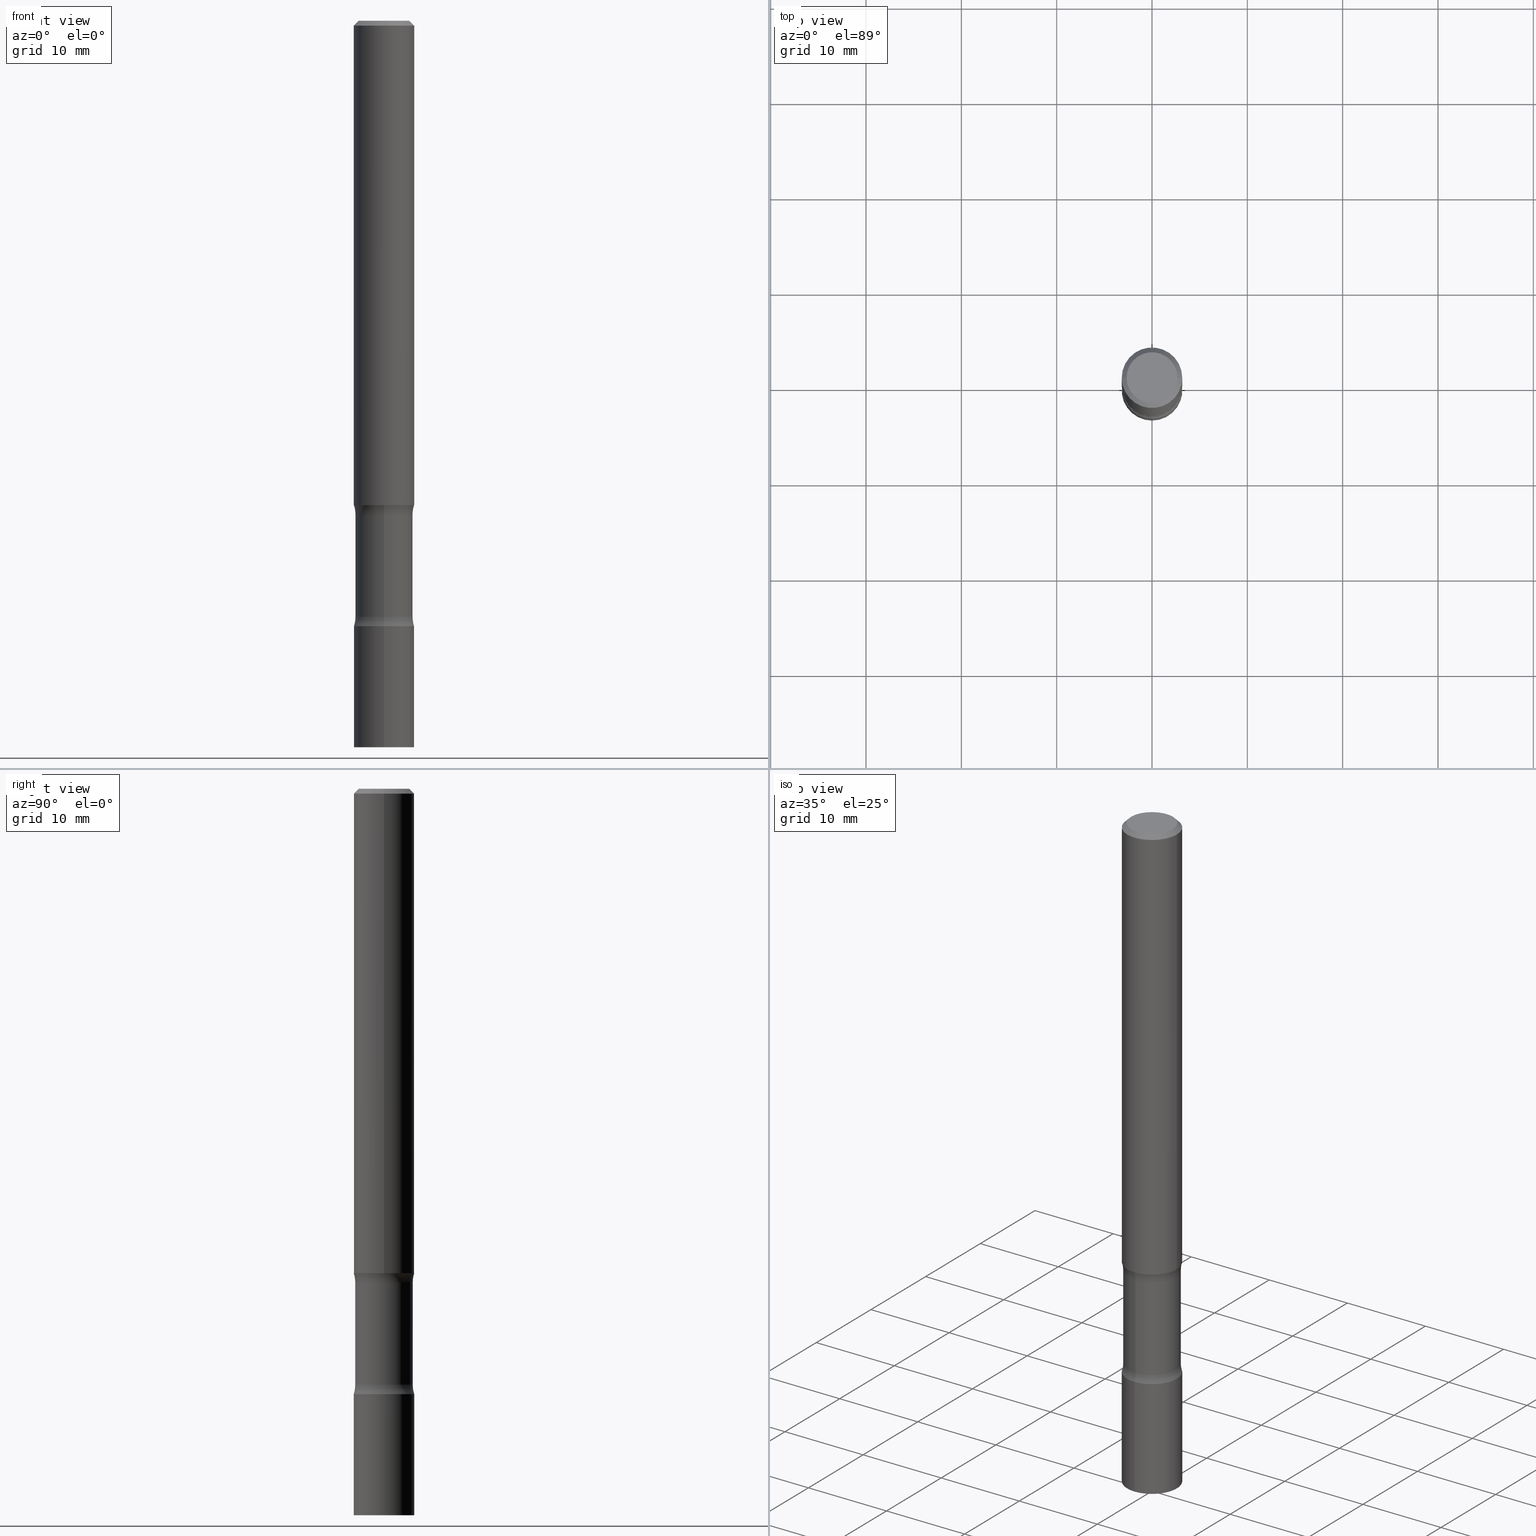
[diagram: canonical four-view strip — front | top / right | iso, engineering-drawing reading convention]
A machine part, canonical four-view strip (front | top / right | iso — engineering-drawing reading convention). The complete STEP part file that produces these views, byte-faithful:
ISO-10303-21;
HEADER;
FILE_DESCRIPTION (( 'STEP AP203' ),
    '1' );
FILE_NAME ('37783.STEP',
    '2024-03-11T13:24:57',
    ( '' ),
    ( '' ),
    'SwSTEP 2.0',
    'SolidWorks 2023',
    '' );
FILE_SCHEMA (( 'CONFIG_CONTROL_DESIGN' ));
ENDSEC;

DATA;
#1 = ORIENTED_EDGE ( 'NONE', *, *, #290, .F. ) ;
#2 = PLANE ( 'NONE',  #314 ) ;
#3 = CARTESIAN_POINT ( 'NONE',  ( 4.944889637458821058E-29, -7.178666509795189020E-15, -2.039031237489990378 ) ) ;
#4 = ORIENTED_EDGE ( 'NONE', *, *, #106, .F. ) ;
#5 = DIRECTION ( 'NONE',  ( 1.000000000000000000, -6.982962677686265922E-15, 4.876176775795935793E-29 ) ) ;
#6 = ADVANCED_FACE ( 'NONE', ( #173 ), #104, .F. ) ;
#7 = VERTEX_POINT ( 'NONE', #336 ) ;
#8 = DIRECTION ( 'NONE',  ( 6.982962677686265922E-15, 1.000000000000000000, -3.490931898794811995E-15 ) ) ;
#9 = ORIENTED_EDGE ( 'NONE', *, *, #14, .F. ) ;
#10 = DIRECTION ( 'NONE',  ( -1.000000000000000000, 6.982962677686265922E-15, -4.883557194083112340E-29 ) ) ;
#11 = DIRECTION ( 'NONE',  ( 2.537572289003869252E-29, -3.359583909242031420E-15, -1.000000000000000000 ) ) ;
#12 = AXIS2_PLACEMENT_3D ( 'NONE', #259, #145, #461 ) ;
#13 = VECTOR ( 'NONE', #175, 39.37007874015748143 ) ;
#14 = EDGE_CURVE ( 'NONE', #36, #79, #452, .T. ) ;
#15 = CARTESIAN_POINT ( 'NONE',  ( 1.702097152686087859E-15, 0.2437499999999914180, -2.460968762510010510 ) ) ;
#16 = ORIENTED_EDGE ( 'NONE', *, *, #353, .T. ) ;
#17 = EDGE_LOOP ( 'NONE', ( #292, #365, #81, #34 ) ) ;
#18 = DIRECTION ( 'NONE',  ( 6.982962677686266711E-15, 1.000000000000000000, -3.359583909242031026E-15 ) ) ;
#19 = VECTOR ( 'NONE', #399, 39.37007874015748143 ) ;
#20 = APPROVAL_PERSON_ORGANIZATION ( #349, #302, #183 ) ;
#21 = CARTESIAN_POINT ( 'NONE',  ( -1.672246386956761357E-15, -0.2437500000000072109, -2.039031237489989934 ) ) ;
#22 = APPROVAL_DATE_TIME ( #379, #302 ) ;
#23 = DIRECTION ( 'NONE',  ( -6.982962677686265922E-15, -1.000000000000000000, 4.370956789862822727E-15 ) ) ;
#24 = EDGE_CURVE ( 'NONE', #7, #202, #338, .T. ) ;
#25 = CALENDAR_DATE ( 2024, 11, 3 ) ;
#26 = DIRECTION ( 'NONE',  ( 2.537572289003869812E-29, -3.359583909242031026E-15, -1.000000000000000000 ) ) ;
#27 = CC_DESIGN_PERSON_AND_ORGANIZATION_ASSIGNMENT ( #424, #102, ( #469 ) ) ;
#28 = VECTOR ( 'NONE', #337, 39.37007874015748143 ) ;
#29 = CARTESIAN_POINT ( 'NONE',  ( 6.114631195300628231E-29, -8.727329746987029987E-15, -2.500000000000000000 ) ) ;
#30 = DATE_AND_TIME ( #25, #113 ) ;
#31 = COORDINATED_UNIVERSAL_TIME_OFFSET ( 5, 0, .BEHIND. ) ;
#32 = VERTEX_POINT ( 'NONE', #378 ) ;
#33 = CIRCLE ( 'NONE', #468, 0.1250000000000000000 ) ;
#34 = ORIENTED_EDGE ( 'NONE', *, *, #456, .F. ) ;
#35 = CARTESIAN_POINT ( 'NONE',  ( 7.332110811570563480E-16, 0.1049999999999997741, -3.666055405785295052E-16 ) ) ;
#36 = VERTEX_POINT ( 'NONE', #181 ) ;
#37 = PLANE ( 'NONE',  #297 ) ;
#38 = FACE_OUTER_BOUND ( 'NONE', #318, .T. ) ;
#39 = AXIS2_PLACEMENT_3D ( 'NONE', #287, #207, #279 ) ;
#40 = CIRCLE ( 'NONE', #315, 0.1187499999999999944 ) ;
#41 = EDGE_LOOP ( 'NONE', ( #482, #431, #72, #479 ) ) ;
#42 = CARTESIAN_POINT ( 'NONE',  ( -1.820262020262032864E-29, -2.358731438611790769E-14, -2.999999999999999556 ) ) ;
#43 = ORIENTED_EDGE ( 'NONE', *, *, #319, .F. ) ;
#44 = DIRECTION ( 'NONE',  ( -6.982962677686265922E-15, -1.000000000000000000, 4.370956789862822727E-15 ) ) ;
#45 = ORIENTED_EDGE ( 'NONE', *, *, #507, .T. ) ;
#46 = APPLICATION_CONTEXT ( 'configuration controlled 3d designs of mechanical parts and assemblies' ) ;
#47 = DIRECTION ( 'NONE',  ( -6.982962677686265922E-15, -1.000000000000000000, 3.490931898794811600E-15 ) ) ;
#48 = LINE ( 'NONE', #398, #19 ) ;
#49 = CIRCLE ( 'NONE', #199, 0.1250000000000000278 ) ;
#50 = ORIENTED_EDGE ( 'NONE', *, *, #392, .T. ) ;
#51 = APPROVAL_PERSON_ORGANIZATION ( #459, #78, #310 ) ;
#52 = CARTESIAN_POINT ( 'NONE',  ( -1.672246386956750707E-15, -0.2437500000000086264, -2.460968762510009622 ) ) ;
#53 = EDGE_LOOP ( 'NONE', ( #288, #355, #321, #76 ) ) ;
#54 = ADVANCED_FACE ( 'NONE', ( #342 ), #304, .T. ) ;
#55 = CYLINDRICAL_SURFACE ( 'NONE', #95, 0.1249999999999999584 ) ;
#56 = CARTESIAN_POINT ( 'NONE',  ( 6.018222341714267541E-29, -8.592426509779609334E-15, -2.460968762510010066 ) ) ;
#57 = DIRECTION ( 'NONE',  ( 6.860497997771530774E-15, 1.000000000000000000, 0.000000000000000000 ) ) ;
#58 = CIRCLE ( 'NONE', #481, 0.1249999999999999584 ) ;
#59 = LOCAL_TIME ( 9, 24, 57.00000000000000000, #228 ) ;
#60 = CALENDAR_DATE ( 2024, 11, 3 ) ;
#61 = CARTESIAN_POINT ( 'NONE',  ( 8.292268179753181276E-16, 0.1187499999999896139, -3.000000000000000444 ) ) ;
#62 = DIRECTION ( 'NONE',  ( 6.982962677686265922E-15, 1.000000000000000000, -4.370956789862822727E-15 ) ) ;
#63 = PERSON_AND_ORGANIZATION_ROLE ( 'classification_officer' ) ;
#64 = DIRECTION ( 'NONE',  ( 2.537572289003869812E-29, -3.359583909242031026E-15, -1.000000000000000000 ) ) ;
#65 = DIRECTION ( 'NONE',  ( 2.445468806185136597E-29, -3.491481338843145583E-15, -1.000000000000000000 ) ) ;
#66 = DIRECTION ( 'NONE',  ( 1.000000000000000000, 0.000000000000000000, 0.000000000000000000 ) ) ;
#67 = CARTESIAN_POINT ( 'NONE',  ( 7.337557434360752308E-29, -1.047279569638443441E-14, -3.000000000000000444 ) ) ;
#68 = COORDINATED_UNIVERSAL_TIME_OFFSET ( 5, 0, .BEHIND. ) ;
#69 = PERSON ( 'UNSPECIFIED', 'UNSPECIFIED', 'UNSPECIFIED', ('UNSPECIFIED'), ('UNSPECIFIED'), ('UNSPECIFIED') ) ;
#70 = CARTESIAN_POINT ( 'NONE',  ( 0.1249999999999997641, -9.273918764983027713E-16, -0.02000000000000000042 ) ) ;
#71 = ADVANCED_FACE ( 'NONE', ( #223 ), #426, .F. ) ;
#72 = ORIENTED_EDGE ( 'NONE', *, *, #381, .T. ) ;
#73 = ORIENTED_EDGE ( 'NONE', *, *, #325, .T. ) ;
#74 = PRODUCT_DEFINITION_SHAPE ( 'NONE', 'NONE',  #121 ) ;
#75 = CIRCLE ( 'NONE', #192, 0.1187499999999999944 ) ;
#76 = ORIENTED_EDGE ( 'NONE', *, *, #261, .F. ) ;
#77 = DIRECTION ( 'NONE',  ( -6.982962677686265922E-15, -1.000000000000000000, 0.000000000000000000 ) ) ;
#78 = APPROVAL ( #149, 'UNSPECIFIED' ) ;
#79 = VERTEX_POINT ( 'NONE', #309 ) ;
#80 = FACE_OUTER_BOUND ( 'NONE', #396, .T. ) ;
#81 = ORIENTED_EDGE ( 'NONE', *, *, #364, .T. ) ;
#82 = CARTESIAN_POINT ( 'NONE',  ( 1.702097152686077012E-15, 0.2437499999999928613, -2.039031237489991266 ) ) ;
#83 = CIRCLE ( 'NONE', #376, 0.1249999999999997641 ) ;
#84 = LOCAL_TIME ( 9, 24, 57.00000000000000000, #266 ) ;
#85 = ORIENTED_EDGE ( 'NONE', *, *, #430, .F. ) ;
#86 = ADVANCED_FACE ( 'NONE', ( #503 ), #354, .T. ) ;
#87 = CARTESIAN_POINT ( 'NONE',  ( 0.000000000000000000, 0.000000000000000000, 0.000000000000000000 ) ) ;
#88 = CARTESIAN_POINT ( 'NONE',  ( 4.890937612370273159E-31, -6.982962677686291609E-17, -0.02000000000000000042 ) ) ;
#89 = CYLINDRICAL_SURFACE ( 'NONE', #264, 0.1187500000000000361 ) ;
#90 = ORIENTED_EDGE ( 'NONE', *, *, #133, .T. ) ;
#91 = DIRECTION ( 'NONE',  ( 1.000000000000000000, -6.860497997771530774E-15, 4.842414157273910573E-29 ) ) ;
#92 = CARTESIAN_POINT ( 'NONE',  ( 7.383417339802561736E-29, -1.040712170160804313E-14, -2.999999999999999556 ) ) ;
#93 = CIRCLE ( 'NONE', #277, 0.1249999999999999584 ) ;
#94 = EDGE_LOOP ( 'NONE', ( #43, #389, #413, #138 ) ) ;
#95 = AXIS2_PLACEMENT_3D ( 'NONE', #334, #132, #47 ) ;
#96 = EDGE_CURVE ( 'NONE', #445, #118, #457, .T. ) ;
#97 = CARTESIAN_POINT ( 'NONE',  ( 6.113672015462842613E-29, -8.728703347107864943E-15, -2.500000000000000000 ) ) ;
#98 = VERTEX_POINT ( 'NONE', #70 ) ;
#99 = CC_DESIGN_DATE_AND_TIME_ASSIGNMENT ( #382, #313, ( #391 ) ) ;
#100 = CARTESIAN_POINT ( 'NONE',  ( 4.890937612370274875E-29, -6.982962677686292743E-15, -2.000000000000000444 ) ) ;
#101 = DIRECTION ( 'NONE',  ( 6.982962677686266711E-15, 1.000000000000000000, -3.359583909242031026E-15 ) ) ;
#102 = PERSON_AND_ORGANIZATION_ROLE ( 'design_owner' ) ;
#103 = CARTESIAN_POINT ( 'NONE',  ( 4.845845050798693605E-29, -7.047537792366015263E-15, -2.000000000000000444 ) ) ;
#104 = TOROIDAL_SURFACE ( 'NONE', #119, 0.2437500000000000222, 0.1250000000000000000 ) ;
#105 = APPROVAL_DATE_TIME ( #224, #78 ) ;
#106 = EDGE_CURVE ( 'NONE', #122, #164, #93, .T. ) ;
#107 = DIRECTION ( 'NONE',  ( -2.445468806185136597E-29, 3.491481338843145583E-15, 1.000000000000000000 ) ) ;
#108 = CARTESIAN_POINT ( 'NONE',  ( 8.881784197001248379E-16, 0.1249999999999999584, -4.363664873493513021E-16 ) ) ;
#109 = CARTESIAN_POINT ( 'NONE',  ( 0.000000000000000000, 0.000000000000000000, 0.000000000000000000 ) ) ;
#110 = CARTESIAN_POINT ( 'NONE',  ( -8.575622497213801114E-16, -0.1250000000000087430, -2.500000000000000000 ) ) ;
#111 = EDGE_CURVE ( 'NONE', #124, #454, #472, .T. ) ;
#112 = AXIS2_PLACEMENT_3D ( 'NONE', #21, #383, #57 ) ;
#113 = LOCAL_TIME ( 9, 24, 57.00000000000000000, #31 ) ;
#114 = EDGE_CURVE ( 'NONE', #202, #156, #49, .T. ) ;
#115 = MANIFOLD_SOLID_BREP ( 'Body-Move/Copy2[4]', #433 ) ;
#116 = EDGE_LOOP ( 'NONE', ( #439, #50, #442, #448 ) ) ;
#117 = EDGE_CURVE ( 'NONE', #333, #445, #410, .T. ) ;
#118 = VERTEX_POINT ( 'NONE', #184 ) ;
#119 = AXIS2_PLACEMENT_3D ( 'NONE', #56, #330, #18 ) ;
#120 = TOROIDAL_SURFACE ( 'NONE', #323, 0.2437500000000000222, 0.1250000000000000000 ) ;
#121 = PRODUCT_DEFINITION ( 'UNKNOWN', '', #193, #487 ) ;
#122 = VERTEX_POINT ( 'NONE', #110 ) ;
#123 = CARTESIAN_POINT ( 'NONE',  ( 6.113672015462842613E-29, -8.728703347107864943E-15, -2.500000000000000000 ) ) ;
#124 = VERTEX_POINT ( 'NONE', #345 ) ;
#125 = DIRECTION ( 'NONE',  ( 2.537572289003869812E-29, -3.359583909242031026E-15, -1.000000000000000000 ) ) ;
#126 = ORIENTED_EDGE ( 'NONE', *, *, #190, .F. ) ;
#127 = CYLINDRICAL_SURFACE ( 'NONE', #441, 0.1249999999999999584 ) ;
#128 = CIRCLE ( 'NONE', #489, 0.1249999999999999584 ) ;
#129 = ORIENTED_EDGE ( 'NONE', *, *, #307, .F. ) ;
#130 = DIRECTION ( 'NONE',  ( -1.000000000000000000, 6.982962677686265922E-15, -4.883557194083112340E-29 ) ) ;
#131 = ORIENTED_EDGE ( 'NONE', *, *, #24, .T. ) ;
#132 = DIRECTION ( 'NONE',  ( -2.445852478120250956E-29, 3.490931898794811600E-15, 1.000000000000000000 ) ) ;
#133 = EDGE_CURVE ( 'NONE', #118, #179, #185, .T. ) ;
#134 = DIRECTION ( 'NONE',  ( -2.445468806185136597E-29, 3.491481338843145583E-15, 1.000000000000000000 ) ) ;
#135 =( CONVERSION_BASED_UNIT ( 'INCH', #374 ) LENGTH_UNIT ( ) NAMED_UNIT ( #504 ) );
#136 = AXIS2_PLACEMENT_3D ( 'NONE', #436, #11, #405 ) ;
#137 = ADVANCED_FACE ( 'NONE', ( #497 ), #312, .F. ) ;
#138 = ORIENTED_EDGE ( 'NONE', *, *, #403, .F. ) ;
#139 = DIRECTION ( 'NONE',  ( 2.537572289003869812E-29, -3.359583909242031026E-15, -1.000000000000000000 ) ) ;
#140 = CARTESIAN_POINT ( 'NONE',  ( 4.938696304666674594E-29, -7.187535714856154390E-15, -2.039031237489990378 ) ) ;
#141 = CARTESIAN_POINT ( 'NONE',  ( 6.018222341714267541E-29, -8.592426509779609334E-15, -2.460968762510010066 ) ) ;
#142 = EDGE_CURVE ( 'NONE', #454, #124, #159, .T. ) ;
#143 = APPLICATION_PROTOCOL_DEFINITION ( 'international standard', 'config_control_design', 1994, #148 ) ;
#144 = LINE ( 'NONE', #61, #490 ) ;
#145 = DIRECTION ( 'NONE',  ( 2.537572289003869812E-29, -3.359583909242031026E-15, -1.000000000000000000 ) ) ;
#146 = AXIS2_PLACEMENT_3D ( 'NONE', #465, #273, #429 ) ;
#147 = VECTOR ( 'NONE', #157, 39.37007874015748143 ) ;
#148 = APPLICATION_CONTEXT ( 'configuration controlled 3d designs of mechanical parts and assemblies' ) ;
#149 = APPROVAL_STATUS ( 'not_yet_approved' ) ;
#150 = DIRECTION ( 'NONE',  ( -2.445852478120250956E-29, 3.490931898794811600E-15, 1.000000000000000000 ) ) ;
#151 = DIRECTION ( 'NONE',  ( -1.000000000000000000, 6.982962677686266711E-15, 0.000000000000000000 ) ) ;
#152 = APPROVAL_STATUS ( 'not_yet_approved' ) ;
#153 = APPROVAL ( #152, 'UNSPECIFIED' ) ;
#154 = CLOSED_SHELL ( 'NONE', ( #200, #484, #300, #210 ) ) ;
#155 = ORIENTED_EDGE ( 'NONE', *, *, #117, .F. ) ;
#156 = VERTEX_POINT ( 'NONE', #219 ) ;
#157 = DIRECTION ( 'NONE',  ( -2.445468806185136877E-29, 3.491481338843145188E-15, 1.000000000000000000 ) ) ;
#158 = ORIENTED_EDGE ( 'NONE', *, *, #395, .F. ) ;
#159 = CIRCLE ( 'NONE', #12, 0.1187500000000000777 ) ;
#160 =( GEOMETRIC_REPRESENTATION_CONTEXT ( 3 ) GLOBAL_UNCERTAINTY_ASSIGNED_CONTEXT ( ( #248 ) ) GLOBAL_UNIT_ASSIGNED_CONTEXT ( ( #135, #254, #491 ) ) REPRESENTATION_CONTEXT ( 'NONE', 'WORKASPACE' ) );
#161 = PLANE ( 'NONE',  #136 ) ;
#162 = EDGE_LOOP ( 'NONE', ( #362, #90 ) ) ;
#163 = DIRECTION ( 'NONE',  ( 2.445852478120250115E-29, -3.490931898794811995E-15, -1.000000000000000000 ) ) ;
#164 = VERTEX_POINT ( 'NONE', #229 ) ;
#165 = DIRECTION ( 'NONE',  ( 1.000000000000000000, -6.982962677686265922E-15, 4.876176775795935232E-29 ) ) ;
#166 = EDGE_LOOP ( 'NONE', ( #409, #73, #370, #285 ) ) ;
#167 = DIRECTION ( 'NONE',  ( 2.537572289003869812E-29, -3.359583909242031026E-15, -1.000000000000000000 ) ) ;
#168 = DIRECTION ( 'NONE',  ( 6.982962677686266711E-15, 1.000000000000000000, -3.359583909242031026E-15 ) ) ;
#169 = AXIS2_PLACEMENT_3D ( 'NONE', #463, #107, #195 ) ;
#170 = CC_DESIGN_APPROVAL ( #153, ( #391 ) ) ;
#171 = FACE_OUTER_BOUND ( 'NONE', #94, .T. ) ;
#172 = DIRECTION ( 'NONE',  ( 2.537572289003869812E-29, -3.359583909242031026E-15, -1.000000000000000000 ) ) ;
#173 = FACE_OUTER_BOUND ( 'NONE', #359, .T. ) ;
#174 = CC_DESIGN_PERSON_AND_ORGANIZATION_ASSIGNMENT ( #462, #63, ( #391 ) ) ;
#175 = DIRECTION ( 'NONE',  ( 2.537572289003869812E-29, -3.359583909242031420E-15, -1.000000000000000000 ) ) ;
#176 = FACE_OUTER_BOUND ( 'NONE', #166, .T. ) ;
#177 = AXIS2_PLACEMENT_3D ( 'NONE', #423, #494, #301 ) ;
#178 = AXIS2_PLACEMENT_3D ( 'NONE', #88, #407, #366 ) ;
#179 = VERTEX_POINT ( 'NONE', #267 ) ;
#180 = DIRECTION ( 'NONE',  ( 6.860497997771530774E-15, 1.000000000000000000, 0.000000000000000000 ) ) ;
#181 = CARTESIAN_POINT ( 'NONE',  ( -0.1049999999999997741, 7.681258945454875041E-16, -5.249639473182155366E-30 ) ) ;
#182 = ADVANCED_FACE ( 'NONE', ( #188 ), #358, .T. ) ;
#183 = APPROVAL_ROLE ( '' ) ;
#184 = CARTESIAN_POINT ( 'NONE',  ( 8.881784197001982020E-16, 0.1249999999999912292, -2.500000000000000444 ) ) ;
#185 = CIRCLE ( 'NONE', #251, 0.1249999999999999584 ) ;
#186 = AXIS2_PLACEMENT_3D ( 'NONE', #294, #289, #243 ) ;
#187 = APPROVAL_STATUS ( 'not_yet_approved' ) ;
#188 = FACE_OUTER_BOUND ( 'NONE', #245, .T. ) ;
#189 = SECURITY_CLASSIFICATION_LEVEL ( 'unclassified' ) ;
#190 = EDGE_CURVE ( 'NONE', #299, #32, #239, .T. ) ;
#191 = ORIENTED_EDGE ( 'NONE', *, *, #319, .T. ) ;
#192 = AXIS2_PLACEMENT_3D ( 'NONE', #3, #324, #363 ) ;
#193 = PRODUCT_DEFINITION_FORMATION_WITH_SPECIFIED_SOURCE ( 'ANY', '', #469, .NOT_KNOWN. ) ;
#194 = ORIENTED_EDGE ( 'NONE', *, *, #14, .T. ) ;
#195 = DIRECTION ( 'NONE',  ( 1.000000000000000000, -6.982962677686267499E-15, 4.876176775795935793E-29 ) ) ;
#196 = ORIENTED_EDGE ( 'NONE', *, *, #325, .F. ) ;
#197 = DIRECTION ( 'NONE',  ( -2.445852478120250956E-29, 3.490931898794811600E-15, 1.000000000000000000 ) ) ;
#198 = EDGE_LOOP ( 'NONE', ( #1, #131, #477, #205 ) ) ;
#199 = AXIS2_PLACEMENT_3D ( 'NONE', #103, #265, #380 ) ;
#200 = ADVANCED_FACE ( 'NONE', ( #394 ), #127, .T. ) ;
#201 = DIRECTION ( 'NONE',  ( -6.982962677686265922E-15, -1.000000000000000000, 3.490931898794811600E-15 ) ) ;
#202 = VERTEX_POINT ( 'NONE', #246 ) ;
#203 = DIRECTION ( 'NONE',  ( 2.445852478120250115E-29, -3.490931898794811995E-15, -1.000000000000000000 ) ) ;
#204 = PRODUCT_RELATED_PRODUCT_CATEGORY ( 'detail', '', ( #469 ) ) ;
#205 = ORIENTED_EDGE ( 'NONE', *, *, #353, .F. ) ;
#206 = CARTESIAN_POINT ( 'NONE',  ( 8.881784197001922855E-16, 0.1249999999999894945, -3.000000000000000888 ) ) ;
#207 = DIRECTION ( 'NONE',  ( 2.537572289003869812E-29, -3.359583909242031026E-15, -1.000000000000000000 ) ) ;
#208 = CARTESIAN_POINT ( 'NONE',  ( 4.890937612370274875E-29, -6.982962677686292743E-15, -2.000000000000000444 ) ) ;
#209 = AXIS2_PLACEMENT_3D ( 'NONE', #460, #64, #453 ) ;
#210 = ADVANCED_FACE ( 'NONE', ( #284 ), #37, .T. ) ;
#211 = DIRECTION ( 'NONE',  ( -6.982962677686265922E-15, -1.000000000000000000, 0.000000000000000000 ) ) ;
#212 = DIRECTION ( 'NONE',  ( 2.537572289003869812E-29, -3.359583909242031420E-15, -1.000000000000000000 ) ) ;
#213 = EDGE_LOOP ( 'NONE', ( #155, #196 ) ) ;
#214 = CARTESIAN_POINT ( 'NONE',  ( -0.1249999999999997641, 8.030407079339186601E-16, -0.02000000000000000042 ) ) ;
#215 = FACE_OUTER_BOUND ( 'NONE', #231, .T. ) ;
#216 = ADVANCED_FACE ( 'NONE', ( #80 ), #161, .F. ) ;
#217 = AXIS2_PLACEMENT_3D ( 'NONE', #478, #125, #168 ) ;
#218 = CONICAL_SURFACE ( 'NONE', #186, 0.1249999999999997641, 0.7853981633974480570 ) ;
#219 = CARTESIAN_POINT ( 'NONE',  ( 8.728703347108321496E-16, 0.1249999999999929917, -2.000000000000000888 ) ) ;
#220 = DIRECTION ( 'NONE',  ( 1.000000000000000000, -6.982962677686265922E-15, 4.876176775795935232E-29 ) ) ;
#221 = MANIFOLD_SOLID_BREP ( 'Body-Move/Copy2[1]', #154 ) ;
#222 = CALENDAR_DATE ( 2024, 11, 3 ) ;
#223 = FACE_OUTER_BOUND ( 'NONE', #327, .T. ) ;
#224 = DATE_AND_TIME ( #230, #84 ) ;
#225 = DIRECTION ( 'NONE',  ( 6.982962677686265133E-15, 1.000000000000000000, -4.601007147224020477E-15 ) ) ;
#226 = AXIS2_PLACEMENT_3D ( 'NONE', #141, #26, #101 ) ;
#227 = CC_DESIGN_SECURITY_CLASSIFICATION ( #391, ( #193 ) ) ;
#228 = COORDINATED_UNIVERSAL_TIME_OFFSET ( 5, 0, .BEHIND. ) ;
#229 = CARTESIAN_POINT ( 'NONE',  ( 8.728703347108444755E-16, 0.1249999999999912847, -2.500000000000000000 ) ) ;
#230 = CALENDAR_DATE ( 2024, 11, 3 ) ;
#231 = EDGE_LOOP ( 'NONE', ( #45, #352, #129, #317 ) ) ;
#232 = ORIENTED_EDGE ( 'NONE', *, *, #114, .F. ) ;
#233 = CIRCLE ( 'NONE', #434, 0.1250000000000000000 ) ;
#234 = LOCAL_TIME ( 9, 24, 57.00000000000000000, #502 ) ;
#235 = ORIENTED_EDGE ( 'NONE', *, *, #493, .F. ) ;
#236 = FACE_OUTER_BOUND ( 'NONE', #116, .T. ) ;
#237 = EDGE_LOOP ( 'NONE', ( #281, #126 ) ) ;
#238 = DIRECTION ( 'NONE',  ( 1.000000000000000000, -6.982962677686266711E-15, 0.000000000000000000 ) ) ;
#239 = CIRCLE ( 'NONE', #146, 0.1250000000000000000 ) ;
#240 = EDGE_CURVE ( 'NONE', #179, #118, #128, .T. ) ;
#241 = FACE_OUTER_BOUND ( 'NONE', #237, .T. ) ;
#242 = EDGE_LOOP ( 'NONE', ( #194, #191 ) ) ;
#243 = DIRECTION ( 'NONE',  ( -1.000000000000000000, 6.982962677686266711E-15, 0.000000000000000000 ) ) ;
#244 = CARTESIAN_POINT ( 'NONE',  ( 0.000000000000000000, 0.000000000000000000, 0.000000000000000000 ) ) ;
#245 = EDGE_LOOP ( 'NONE', ( #276, #9, #401, #474 ) ) ;
#246 = CARTESIAN_POINT ( 'NONE',  ( -8.575622497213932262E-16, -0.1250000000000071054, -2.000000000000000000 ) ) ;
#247 = ORIENTED_EDGE ( 'NONE', *, *, #395, .T. ) ;
#248 = UNCERTAINTY_MEASURE_WITH_UNIT (LENGTH_MEASURE( 1.000000000000000082E-05 ), #135, 'distance_accuracy_value', 'NONE');
#249 = DIRECTION ( 'NONE',  ( 1.000000000000000000, -6.982962677686270655E-15, 0.000000000000000000 ) ) ;
#250 = FACE_OUTER_BOUND ( 'NONE', #437, .T. ) ;
#251 = AXIS2_PLACEMENT_3D ( 'NONE', #29, #415, #386 ) ;
#252 = APPROVAL_PERSON_ORGANIZATION ( #505, #153, #464 ) ;
#253 = ORIENTED_EDGE ( 'NONE', *, *, #256, .T. ) ;
#254 =( NAMED_UNIT ( * ) PLANE_ANGLE_UNIT ( ) SI_UNIT ( $, .RADIAN. ) );
#255 = ORIENTED_EDGE ( 'NONE', *, *, #142, .T. ) ;
#256 = EDGE_CURVE ( 'NONE', #164, #122, #272, .T. ) ;
#257 = DIRECTION ( 'NONE',  ( 1.000000000000000000, -6.982962677686267499E-15, 4.876176775795935793E-29 ) ) ;
#258 = CARTESIAN_POINT ( 'NONE',  ( -0.1249999999999997641, 8.030407079339186601E-16, -0.02000000000000000042 ) ) ;
#259 = CARTESIAN_POINT ( 'NONE',  ( 6.015586608640499097E-29, -8.596201029557853074E-15, -2.460968762510010066 ) ) ;
#260 = DATE_AND_TIME ( #384, #59 ) ;
#261 = EDGE_CURVE ( 'NONE', #333, #179, #48, .T. ) ;
#262 = DIRECTION ( 'NONE',  ( 2.537572289003869812E-29, -3.359583909242031026E-15, -1.000000000000000000 ) ) ;
#263 = VECTOR ( 'NONE', #444, 39.37007874015748143 ) ;
#264 = AXIS2_PLACEMENT_3D ( 'NONE', #92, #172, #344 ) ;
#265 = DIRECTION ( 'NONE',  ( 2.537572289003869812E-29, -3.359583909242031026E-15, -1.000000000000000000 ) ) ;
#266 = COORDINATED_UNIVERSAL_TIME_OFFSET ( 5, 0, .BEHIND. ) ;
#267 = CARTESIAN_POINT ( 'NONE',  ( -8.728703347107218077E-16, -0.1250000000000086875, -2.499999999999999556 ) ) ;
#268 = PERSON_AND_ORGANIZATION ( #69, #278 ) ;
#269 = CARTESIAN_POINT ( 'NONE',  ( 6.114631195300628231E-29, -8.727329746987029987E-15, -2.500000000000000000 ) ) ;
#270 = CC_DESIGN_PERSON_AND_ORGANIZATION_ASSIGNMENT ( #495, #305, ( #121 ) ) ;
#271 = APPLICATION_PROTOCOL_DEFINITION ( 'international standard', 'config_control_design', 1994, #46 ) ;
#272 = CIRCLE ( 'NONE', #39, 0.1249999999999999584 ) ;
#273 = DIRECTION ( 'NONE',  ( -2.445468806185136597E-29, 3.491481338843145583E-15, 1.000000000000000000 ) ) ;
#274 = AXIS2_PLACEMENT_3D ( 'NONE', #100, #369, #249 ) ;
#275 = CARTESIAN_POINT ( 'NONE',  ( 4.944889637458821058E-29, -7.178666509795189020E-15, -2.039031237489990378 ) ) ;
#276 = ORIENTED_EDGE ( 'NONE', *, *, #346, .F. ) ;
#277 = AXIS2_PLACEMENT_3D ( 'NONE', #269, #139, #62 ) ;
#278 = ORGANIZATION ( 'UNSPECIFIED', 'UNSPECIFIED', '' ) ;
#279 = DIRECTION ( 'NONE',  ( 6.982962677686265922E-15, 1.000000000000000000, -4.370956789862822727E-15 ) ) ;
#280 = ADVANCED_FACE ( 'NONE', ( #241 ), #483, .F. ) ;
#281 = ORIENTED_EDGE ( 'NONE', *, *, #507, .F. ) ;
#282 = CARTESIAN_POINT ( 'NONE',  ( 4.890937612370273159E-31, -6.982962677686291609E-17, -0.02000000000000000042 ) ) ;
#283 = ORIENTED_EDGE ( 'NONE', *, *, #24, .F. ) ;
#284 = FACE_OUTER_BOUND ( 'NONE', #213, .T. ) ;
#285 = ORIENTED_EDGE ( 'NONE', *, *, #133, .F. ) ;
#286 = CARTESIAN_POINT ( 'NONE',  ( -8.361231934783450810E-16, -0.1187500000000086681, -2.460968762510009622 ) ) ;
#287 = CARTESIAN_POINT ( 'NONE',  ( 6.114631195300628231E-29, -8.727329746987029987E-15, -2.500000000000000000 ) ) ;
#288 = ORIENTED_EDGE ( 'NONE', *, *, #117, .T. ) ;
#289 = DIRECTION ( 'NONE',  ( 2.445468806185136597E-29, -3.491481338843145583E-15, -1.000000000000000000 ) ) ;
#290 = EDGE_CURVE ( 'NONE', #7, #393, #75, .T. ) ;
#291 = LINE ( 'NONE', #447, #147 ) ;
#292 = ORIENTED_EDGE ( 'NONE', *, *, #451, .F. ) ;
#293 = DIRECTION ( 'NONE',  ( 6.982962677686265133E-15, 1.000000000000000000, -2.300503573612011422E-15 ) ) ;
#294 = CARTESIAN_POINT ( 'NONE',  ( 4.890937612370273159E-31, -6.982962677686291609E-17, -0.02000000000000000042 ) ) ;
#295 = DIRECTION ( 'NONE',  ( -0.7071067811865473507, 2.468850131082255088E-15, -0.7071067811865476838 ) ) ;
#296 = CARTESIAN_POINT ( 'NONE',  ( 8.292268179752934757E-16, 0.1187499999999928196, -2.039031237489990822 ) ) ;
#297 = AXIS2_PLACEMENT_3D ( 'NONE', #42, #203, #8 ) ;
#298 = CC_DESIGN_APPROVAL ( #78, ( #193 ) ) ;
#299 = VERTEX_POINT ( 'NONE', #404 ) ;
#300 = ADVANCED_FACE ( 'NONE', ( #471 ), #2, .F. ) ;
#301 = DIRECTION ( 'NONE',  ( 6.982962677686265922E-15, 1.000000000000000000, -4.601007147224018900E-15 ) ) ;
#302 = APPROVAL ( #187, 'UNSPECIFIED' ) ;
#303 = DATE_TIME_ROLE ( 'creation_date' ) ;
#304 = CYLINDRICAL_SURFACE ( 'NONE', #498, 0.1187500000000000361 ) ;
#305 = PERSON_AND_ORGANIZATION_ROLE ( 'creator' ) ;
#306 = LINE ( 'NONE', #335, #13 ) ;
#307 = EDGE_CURVE ( 'NONE', #98, #508, #83, .T. ) ;
#308 = AXIS2_PLACEMENT_3D ( 'NONE', #208, #475, #5 ) ;
#309 = CARTESIAN_POINT ( 'NONE',  ( 0.1049999999999997741, -8.238720831321559881E-16, 5.444276250344138855E-30 ) ) ;
#310 = APPROVAL_ROLE ( '' ) ;
#311 = CC_DESIGN_PERSON_AND_ORGANIZATION_ASSIGNMENT ( #268, #387, ( #193 ) ) ;
#312 = PLANE ( 'NONE',  #322 ) ;
#313 = DATE_TIME_ROLE ( 'classification_date' ) ;
#314 = AXIS2_PLACEMENT_3D ( 'NONE', #123, #163, #367 ) ;
#315 = AXIS2_PLACEMENT_3D ( 'NONE', #275, #167, #293 ) ;
#316 = ADVANCED_FACE ( 'NONE', ( #38 ), #416, .F. ) ;
#317 = ORIENTED_EDGE ( 'NONE', *, *, #364, .F. ) ;
#318 = EDGE_LOOP ( 'NONE', ( #283, #85, #16, #247 ) ) ;
#319 = EDGE_CURVE ( 'NONE', #79, #36, #506, .T. ) ;
#320 = CARTESIAN_POINT ( 'NONE',  ( -8.728703347107095803E-16, -0.1250000000000104361, -2.999999999999999556 ) ) ;
#321 = ORIENTED_EDGE ( 'NONE', *, *, #240, .F. ) ;
#322 = AXIS2_PLACEMENT_3D ( 'NONE', #35, #422, #455 ) ;
#323 = AXIS2_PLACEMENT_3D ( 'NONE', #140, #262, #450 ) ;
#324 = DIRECTION ( 'NONE',  ( 2.537572289003869812E-29, -3.359583909242031026E-15, -1.000000000000000000 ) ) ;
#325 = EDGE_CURVE ( 'NONE', #445, #333, #58, .T. ) ;
#326 = DIRECTION ( 'NONE',  ( -2.445852478120250956E-29, 3.490931898794811600E-15, 1.000000000000000000 ) ) ;
#327 = EDGE_LOOP ( 'NONE', ( #4, #406, #255, #470 ) ) ;
#328 = ADVANCED_BREP_SHAPE_REPRESENTATION ( '37783', ( #221, #397, #115, #428 ), #160 ) ;
#329 = DIRECTION ( 'NONE',  ( -6.982962677686265922E-15, -1.000000000000000000, 4.370956789862822727E-15 ) ) ;
#330 = DIRECTION ( 'NONE',  ( 2.537572289003869812E-29, -3.359583909242031026E-15, -1.000000000000000000 ) ) ;
#331 = CARTESIAN_POINT ( 'NONE',  ( 0.000000000000000000, 0.000000000000000000, 0.000000000000000000 ) ) ;
#332 = LINE ( 'NONE', #440, #263 ) ;
#333 = VERTEX_POINT ( 'NONE', #320 ) ;
#334 = CARTESIAN_POINT ( 'NONE',  ( 0.000000000000000000, 0.000000000000000000, 0.000000000000000000 ) ) ;
#335 = CARTESIAN_POINT ( 'NONE',  ( -8.146841372352955554E-16, -0.1187500000000104444, -2.999999999999999112 ) ) ;
#336 = CARTESIAN_POINT ( 'NONE',  ( -8.361231934783565195E-16, -0.1187500000000071693, -2.039031237489990378 ) ) ;
#337 = DIRECTION ( 'NONE',  ( -2.445468806185136877E-29, 3.491481338843145188E-15, 1.000000000000000000 ) ) ;
#338 = CIRCLE ( 'NONE', #112, 0.1250000000000000000 ) ;
#339 = AXIS2_PLACEMENT_3D ( 'NONE', #331, #446, #257 ) ;
#340 = CC_DESIGN_DATE_AND_TIME_ASSIGNMENT ( #260, #303, ( #121 ) ) ;
#341 = ORIENTED_EDGE ( 'NONE', *, *, #256, .F. ) ;
#342 = FACE_OUTER_BOUND ( 'NONE', #41, .T. ) ;
#343 = MECHANICAL_CONTEXT ( 'NONE', #46, 'mechanical' ) ;
#344 = DIRECTION ( 'NONE',  ( 6.982962677686265133E-15, 1.000000000000000000, -4.601007147224020477E-15 ) ) ;
#345 = CARTESIAN_POINT ( 'NONE',  ( 8.292268179753048156E-16, 0.1187499999999914874, -2.460968762510010510 ) ) ;
#346 = EDGE_CURVE ( 'NONE', #79, #98, #332, .T. ) ;
#347 = LOCAL_TIME ( 9, 24, 57.00000000000000000, #68 ) ;
#348 = CARTESIAN_POINT ( 'NONE',  ( 7.383417339802561736E-29, -1.040712170160804313E-14, -2.999999999999999556 ) ) ;
#349 = PERSON_AND_ORGANIZATION ( #69, #278 ) ;
#350 = CARTESIAN_POINT ( 'NONE',  ( 4.890937612370273159E-31, -6.982962677686291609E-17, -0.02000000000000000042 ) ) ;
#351 = APPROVAL_DATE_TIME ( #30, #153 ) ;
#352 = ORIENTED_EDGE ( 'NONE', *, *, #451, .T. ) ;
#353 = EDGE_CURVE ( 'NONE', #393, #156, #233, .T. ) ;
#354 = CYLINDRICAL_SURFACE ( 'NONE', #169, 0.1249999999999998751 ) ;
#355 = ORIENTED_EDGE ( 'NONE', *, *, #96, .T. ) ;
#356 = CC_DESIGN_PERSON_AND_ORGANIZATION_ASSIGNMENT ( #499, #421, ( #193 ) ) ;
#357 = CARTESIAN_POINT ( 'NONE',  ( 6.114631195300628231E-29, -8.727329746987029987E-15, -2.500000000000000000 ) ) ;
#358 = CONICAL_SURFACE ( 'NONE', #458, 0.1249999999999997641, 0.7853981633974480570 ) ;
#359 = EDGE_LOOP ( 'NONE', ( #235, #341, #492, #373 ) ) ;
#360 = AXIS2_PLACEMENT_3D ( 'NONE', #52, #91, #180 ) ;
#361 = DIRECTION ( 'NONE',  ( -2.445852478120250956E-29, 3.490931898794811600E-15, 1.000000000000000000 ) ) ;
#362 = ORIENTED_EDGE ( 'NONE', *, *, #240, .T. ) ;
#363 = DIRECTION ( 'NONE',  ( 6.982962677686265133E-15, 1.000000000000000000, -2.300503573612011422E-15 ) ) ;
#364 = EDGE_CURVE ( 'NONE', #32, #98, #291, .T. ) ;
#365 = ORIENTED_EDGE ( 'NONE', *, *, #190, .T. ) ;
#366 = DIRECTION ( 'NONE',  ( 1.000000000000000000, -6.982962677686266711E-15, 0.000000000000000000 ) ) ;
#367 = DIRECTION ( 'NONE',  ( 6.982962677686265922E-15, 1.000000000000000000, -3.490931898794811995E-15 ) ) ;
#368 = VECTOR ( 'NONE', #501, 39.37007874015748143 ) ;
#369 = DIRECTION ( 'NONE',  ( -2.445468806185136597E-29, 3.491481338843145583E-15, 1.000000000000000000 ) ) ;
#370 = ORIENTED_EDGE ( 'NONE', *, *, #261, .T. ) ;
#371 = ADVANCED_FACE ( 'NONE', ( #236 ), #89, .T. ) ;
#372 = DIRECTION ( 'NONE',  ( -2.537572289003869252E-29, 3.359583909242031420E-15, 1.000000000000000000 ) ) ;
#373 = ORIENTED_EDGE ( 'NONE', *, *, #111, .T. ) ;
#374 = LENGTH_MEASURE_WITH_UNIT ( LENGTH_MEASURE( 0.02539999999999999897 ), #488 );
#375 = ADVANCED_FACE ( 'NONE', ( #496 ), #120, .F. ) ;
#376 = AXIS2_PLACEMENT_3D ( 'NONE', #282, #438, #238 ) ;
#377 = LINE ( 'NONE', #449, #28 ) ;
#378 = CARTESIAN_POINT ( 'NONE',  ( 0.1250000000000000000, -7.855833012397076871E-15, -2.000000000000000444 ) ) ;
#379 = DATE_AND_TIME ( #60, #347 ) ;
#380 = DIRECTION ( 'NONE',  ( 6.982962677686265922E-15, 1.000000000000000000, -4.370956789862820361E-15 ) ) ;
#381 = EDGE_CURVE ( 'NONE', #393, #124, #144, .T. ) ;
#382 = DATE_AND_TIME ( #222, #234 ) ;
#383 = DIRECTION ( 'NONE',  ( 1.000000000000000000, -6.860497997771530774E-15, 4.842414157273910573E-29 ) ) ;
#384 = CALENDAR_DATE ( 2024, 11, 3 ) ;
#385 = AXIS2_PLACEMENT_3D ( 'NONE', #67, #150, #23 ) ;
#386 = DIRECTION ( 'NONE',  ( -6.982962677686265922E-15, -1.000000000000000000, 4.370956789862822727E-15 ) ) ;
#387 = PERSON_AND_ORGANIZATION_ROLE ( 'creator' ) ;
#388 = SHAPE_DEFINITION_REPRESENTATION ( #74, #328 ) ;
#389 = ORIENTED_EDGE ( 'NONE', *, *, #346, .T. ) ;
#390 = AXIS2_PLACEMENT_3D ( 'NONE', #87, #480, #165 ) ;
#391 = SECURITY_CLASSIFICATION ( '', '', #189 ) ;
#392 = EDGE_CURVE ( 'NONE', #7, #454, #306, .T. ) ;
#393 = VERTEX_POINT ( 'NONE', #296 ) ;
#394 = FACE_OUTER_BOUND ( 'NONE', #53, .T. ) ;
#395 = EDGE_CURVE ( 'NONE', #156, #202, #443, .T. ) ;
#396 = EDGE_LOOP ( 'NONE', ( #158, #232 ) ) ;
#397 = MANIFOLD_SOLID_BREP ( 'Body-Move/Copy2[2]', #467 ) ;
#398 = CARTESIAN_POINT ( 'NONE',  ( -8.728703347107829444E-16, -0.1249999999999999584, 4.363664873493513021E-16 ) ) ;
#399 = DIRECTION ( 'NONE',  ( -2.445852478120250956E-29, 3.490931898794811995E-15, 1.000000000000000000 ) ) ;
#400 = AXIS2_PLACEMENT_3D ( 'NONE', #486, #134, #220 ) ;
#401 = ORIENTED_EDGE ( 'NONE', *, *, #403, .T. ) ;
#402 = CIRCLE ( 'NONE', #360, 0.1250000000000000000 ) ;
#403 = EDGE_CURVE ( 'NONE', #36, #508, #485, .T. ) ;
#404 = CARTESIAN_POINT ( 'NONE',  ( -0.1250000000000000000, -2.638217732531449633E-15, -2.000000000000000444 ) ) ;
#405 = DIRECTION ( 'NONE',  ( 6.982962677686265922E-15, 1.000000000000000000, -3.359583909242031420E-15 ) ) ;
#406 = ORIENTED_EDGE ( 'NONE', *, *, #493, .T. ) ;
#407 = DIRECTION ( 'NONE',  ( -2.445468806185136597E-29, 3.491481338843145583E-15, 1.000000000000000000 ) ) ;
#408 = CARTESIAN_POINT ( 'NONE',  ( 7.337557434360752308E-29, -1.047279569638443441E-14, -3.000000000000000444 ) ) ;
#409 = ORIENTED_EDGE ( 'NONE', *, *, #96, .F. ) ;
#410 = CIRCLE ( 'NONE', #385, 0.1249999999999999584 ) ;
#411 = CC_DESIGN_APPROVAL ( #302, ( #121 ) ) ;
#412 = CYLINDRICAL_SURFACE ( 'NONE', #339, 0.1249999999999998751 ) ;
#413 = ORIENTED_EDGE ( 'NONE', *, *, #307, .T. ) ;
#414 = PLANE ( 'NONE',  #500 ) ;
#415 = DIRECTION ( 'NONE',  ( -2.445852478120250956E-29, 3.490931898794811600E-15, 1.000000000000000000 ) ) ;
#416 = TOROIDAL_SURFACE ( 'NONE', #217, 0.2437500000000000222, 0.1250000000000000000 ) ;
#417 = DIRECTION ( 'NONE',  ( 0.000000000000000000, 0.000000000000000000, 1.000000000000000000 ) ) ;
#418 = VECTOR ( 'NONE', #295, 39.37007874015748143 ) ;
#419 = ADVANCED_FACE ( 'NONE', ( #250 ), #414, .F. ) ;
#420 = DIRECTION ( 'NONE',  ( 2.537572289003869812E-29, -3.359583909242031026E-15, -1.000000000000000000 ) ) ;
#421 = PERSON_AND_ORGANIZATION_ROLE ( 'design_supplier' ) ;
#422 = DIRECTION ( 'NONE',  ( 2.438088387897960049E-29, -3.491481338843145188E-15, -1.000000000000000000 ) ) ;
#423 = CARTESIAN_POINT ( 'NONE',  ( 6.015586608640499097E-29, -8.596201029557853074E-15, -2.460968762510010066 ) ) ;
#424 = PERSON_AND_ORGANIZATION ( #69, #278 ) ;
#425 = DIRECTION ( 'NONE',  ( -6.982962677686265922E-15, -1.000000000000000000, 3.359583909242031420E-15 ) ) ;
#426 = TOROIDAL_SURFACE ( 'NONE', #226, 0.2437500000000000222, 0.1250000000000000000 ) ;
#427 = CIRCLE ( 'NONE', #178, 0.1249999999999997641 ) ;
#428 = AXIS2_PLACEMENT_3D ( 'NONE', #109, #417, #66 ) ;
#429 = DIRECTION ( 'NONE',  ( 1.000000000000000000, -6.982962677686270655E-15, 0.000000000000000000 ) ) ;
#430 = EDGE_CURVE ( 'NONE', #393, #7, #40, .T. ) ;
#431 = ORIENTED_EDGE ( 'NONE', *, *, #290, .T. ) ;
#432 = ADVANCED_FACE ( 'NONE', ( #171 ), #218, .T. ) ;
#433 = CLOSED_SHELL ( 'NONE', ( #371, #71, #375, #316, #216, #419, #6, #54 ) ) ;
#434 = AXIS2_PLACEMENT_3D ( 'NONE', #82, #130, #77 ) ;
#435 = ORIENTED_EDGE ( 'NONE', *, *, #106, .T. ) ;
#436 = CARTESIAN_POINT ( 'NONE',  ( 4.890937612370274875E-29, -6.982962677686292743E-15, -2.000000000000000444 ) ) ;
#437 = EDGE_LOOP ( 'NONE', ( #253, #435 ) ) ;
#438 = DIRECTION ( 'NONE',  ( -2.445468806185136597E-29, 3.491481338843145583E-15, 1.000000000000000000 ) ) ;
#439 = ORIENTED_EDGE ( 'NONE', *, *, #430, .T. ) ;
#440 = CARTESIAN_POINT ( 'NONE',  ( 0.1249999999999997641, -9.273918764983027713E-16, -0.02000000000000000042 ) ) ;
#441 = AXIS2_PLACEMENT_3D ( 'NONE', #244, #197, #201 ) ;
#442 = ORIENTED_EDGE ( 'NONE', *, *, #111, .F. ) ;
#443 = CIRCLE ( 'NONE', #209, 0.1250000000000000278 ) ;
#444 = DIRECTION ( 'NONE',  ( 0.7071067811865473507, -7.319954787623256045E-15, -0.7071067811865476838 ) ) ;
#445 = VERTEX_POINT ( 'NONE', #206 ) ;
#446 = DIRECTION ( 'NONE',  ( -2.445468806185136597E-29, 3.491481338843145583E-15, 1.000000000000000000 ) ) ;
#447 = CARTESIAN_POINT ( 'NONE',  ( 0.1249999999999998751, -8.728703347107825500E-16, 6.095220969744913435E-30 ) ) ;
#448 = ORIENTED_EDGE ( 'NONE', *, *, #381, .F. ) ;
#449 = CARTESIAN_POINT ( 'NONE',  ( -0.1249999999999998751, 8.881784197001243449E-16, -6.148668862818626622E-30 ) ) ;
#450 = DIRECTION ( 'NONE',  ( 6.982962677686266711E-15, 1.000000000000000000, -3.359583909242031026E-15 ) ) ;
#451 = EDGE_CURVE ( 'NONE', #299, #508, #377, .T. ) ;
#452 = CIRCLE ( 'NONE', #400, 0.1049999999999997741 ) ;
#453 = DIRECTION ( 'NONE',  ( 6.982962677686265922E-15, 1.000000000000000000, -4.370956789862820361E-15 ) ) ;
#454 = VERTEX_POINT ( 'NONE', #286 ) ;
#455 = DIRECTION ( 'NONE',  ( -1.000000000000000000, 6.982962677686265922E-15, -4.876176775795935793E-29 ) ) ;
#456 = EDGE_CURVE ( 'NONE', #508, #98, #427, .T. ) ;
#457 = LINE ( 'NONE', #108, #368 ) ;
#458 = AXIS2_PLACEMENT_3D ( 'NONE', #350, #65, #151 ) ;
#459 = PERSON_AND_ORGANIZATION ( #69, #278 ) ;
#460 = CARTESIAN_POINT ( 'NONE',  ( 4.845845050798693605E-29, -7.047537792366015263E-15, -2.000000000000000444 ) ) ;
#461 = DIRECTION ( 'NONE',  ( 6.982962677686265922E-15, 1.000000000000000000, -4.601007147224018900E-15 ) ) ;
#462 = PERSON_AND_ORGANIZATION ( #69, #278 ) ;
#463 = CARTESIAN_POINT ( 'NONE',  ( 0.000000000000000000, 0.000000000000000000, 0.000000000000000000 ) ) ;
#464 = APPROVAL_ROLE ( '' ) ;
#465 = CARTESIAN_POINT ( 'NONE',  ( 4.890937612370274875E-29, -6.982962677686292743E-15, -2.000000000000000444 ) ) ;
#466 = EDGE_CURVE ( 'NONE', #164, #124, #33, .T. ) ;
#467 = CLOSED_SHELL ( 'NONE', ( #476, #432, #182, #137, #280, #86 ) ) ;
#468 = AXIS2_PLACEMENT_3D ( 'NONE', #15, #10, #211 ) ;
#469 = PRODUCT ( '37783', '37783', '', ( #343 ) ) ;
#470 = ORIENTED_EDGE ( 'NONE', *, *, #466, .F. ) ;
#471 = FACE_OUTER_BOUND ( 'NONE', #162, .T. ) ;
#472 = CIRCLE ( 'NONE', #177, 0.1187500000000000777 ) ;
#473 = CIRCLE ( 'NONE', #274, 0.1250000000000000000 ) ;
#474 = ORIENTED_EDGE ( 'NONE', *, *, #456, .T. ) ;
#475 = DIRECTION ( 'NONE',  ( -2.438088387897960049E-29, 3.491481338843145188E-15, 1.000000000000000000 ) ) ;
#476 = ADVANCED_FACE ( 'NONE', ( #215 ), #412, .T. ) ;
#477 = ORIENTED_EDGE ( 'NONE', *, *, #114, .T. ) ;
#478 = CARTESIAN_POINT ( 'NONE',  ( 4.938696304666674594E-29, -7.187535714856154390E-15, -2.039031237489990378 ) ) ;
#479 = ORIENTED_EDGE ( 'NONE', *, *, #142, .F. ) ;
#480 = DIRECTION ( 'NONE',  ( -2.445468806185136597E-29, 3.491481338843145583E-15, 1.000000000000000000 ) ) ;
#481 = AXIS2_PLACEMENT_3D ( 'NONE', #408, #326, #329 ) ;
#482 = ORIENTED_EDGE ( 'NONE', *, *, #392, .F. ) ;
#483 = PLANE ( 'NONE',  #308 ) ;
#484 = ADVANCED_FACE ( 'NONE', ( #176 ), #55, .T. ) ;
#485 = LINE ( 'NONE', #258, #418 ) ;
#486 = CARTESIAN_POINT ( 'NONE',  ( 0.000000000000000000, 0.000000000000000000, 0.000000000000000000 ) ) ;
#487 = DESIGN_CONTEXT ( 'detailed design', #148, 'design' ) ;
#488 =( LENGTH_UNIT ( ) NAMED_UNIT ( * ) SI_UNIT ( $, .METRE. ) );
#489 = AXIS2_PLACEMENT_3D ( 'NONE', #357, #361, #44 ) ;
#490 = VECTOR ( 'NONE', #212, 39.37007874015748143 ) ;
#491 =( NAMED_UNIT ( * ) SI_UNIT ( $, .STERADIAN. ) SOLID_ANGLE_UNIT ( ) );
#492 = ORIENTED_EDGE ( 'NONE', *, *, #466, .T. ) ;
#493 = EDGE_CURVE ( 'NONE', #122, #454, #402, .T. ) ;
#494 = DIRECTION ( 'NONE',  ( 2.537572289003869812E-29, -3.359583909242031026E-15, -1.000000000000000000 ) ) ;
#495 = PERSON_AND_ORGANIZATION ( #69, #278 ) ;
#496 = FACE_OUTER_BOUND ( 'NONE', #198, .T. ) ;
#497 = FACE_OUTER_BOUND ( 'NONE', #242, .T. ) ;
#498 = AXIS2_PLACEMENT_3D ( 'NONE', #348, #420, #225 ) ;
#499 = PERSON_AND_ORGANIZATION ( #69, #278 ) ;
#500 = AXIS2_PLACEMENT_3D ( 'NONE', #97, #372, #425 ) ;
#501 = DIRECTION ( 'NONE',  ( -2.445852478120250956E-29, 3.490931898794811995E-15, 1.000000000000000000 ) ) ;
#502 = COORDINATED_UNIVERSAL_TIME_OFFSET ( 5, 0, .BEHIND. ) ;
#503 = FACE_OUTER_BOUND ( 'NONE', #17, .T. ) ;
#504 = DIMENSIONAL_EXPONENTS ( 1.000000000000000000, 0.000000000000000000, 0.000000000000000000, 0.000000000000000000, 0.000000000000000000, 0.000000000000000000, 0.000000000000000000 ) ;
#505 = PERSON_AND_ORGANIZATION ( #69, #278 ) ;
#506 = CIRCLE ( 'NONE', #390, 0.1049999999999997741 ) ;
#507 = EDGE_CURVE ( 'NONE', #32, #299, #473, .T. ) ;
#508 = VERTEX_POINT ( 'NONE', #214 ) ;
ENDSEC;
END-ISO-10303-21;
